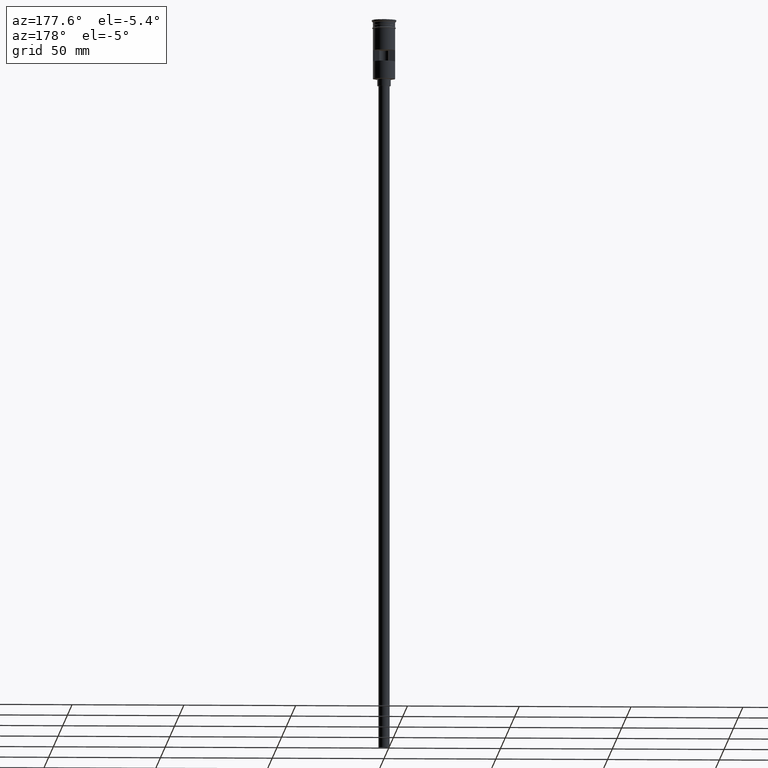
[diagram: clean part render]
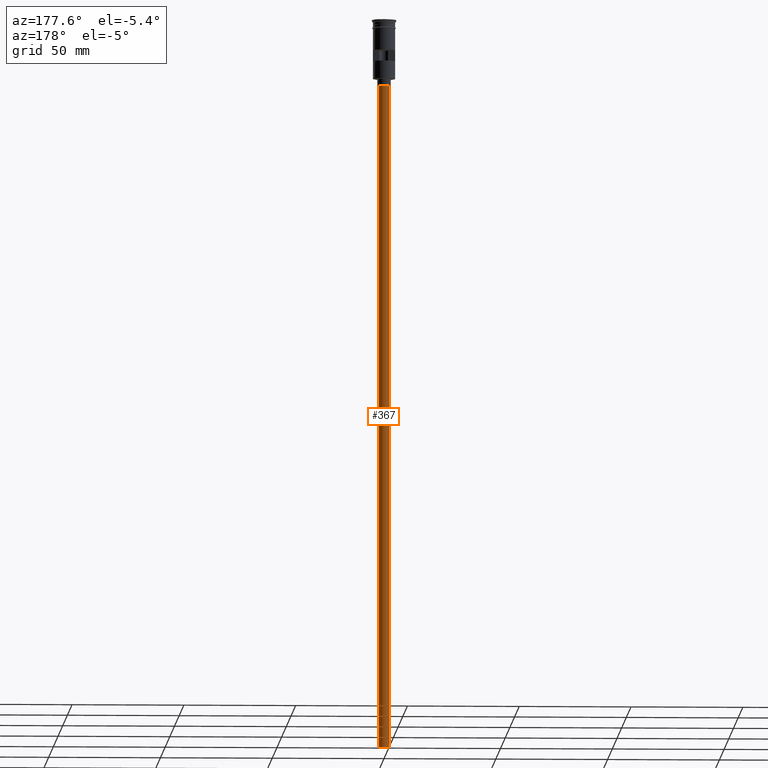
[diagram: same view with one face highlighted and labeled with its STEP entity id]
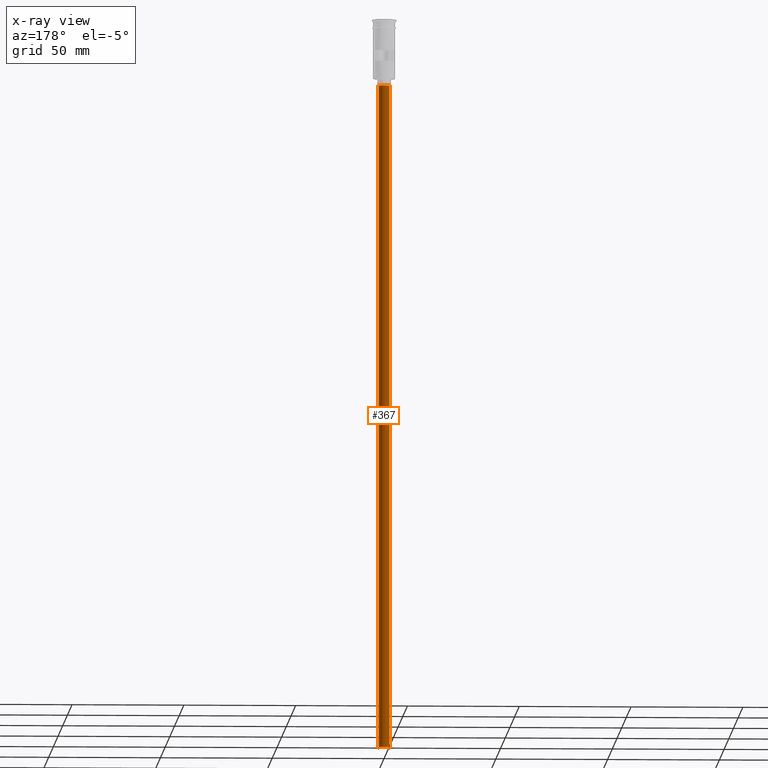
[diagram: x-ray of the same camera — body ghosted, the highlighted face saturated]
A machine part, auxiliary view. The second image highlights one B-rep face of the part: STEP entity #367.
The next image is the same camera in x-ray: the body ghosted, the highlighted face saturated — about 0% of this face is hidden behind the body in this view.
In plain terms, the highlighted cylindrical surface (edge-blend (fillet) strip) has radius 2.5 mm, axis along (-0, -0, 1).
Its self-contained STEP definition (entity closure, byte-faithful):
#41 = FACE_OUTER_BOUND ( 'NONE', #67, .T. ) ;
#49 = CIRCLE ( 'NONE', #661, 2.500000000000000000 ) ;
#67 = EDGE_LOOP ( 'NONE', ( #716, #928, #1349, #640 ) ) ;
#86 = CARTESIAN_POINT ( 'NONE',  ( -2.500000000000000000, 3.061616997868383141E-16, -29.50000000000000000 ) ) ;
#106 = EDGE_CURVE ( 'NONE', #311, #1143, #264, .T. ) ;
#118 = DIRECTION ( 'NONE',  ( -0.000000000000000000, -0.000000000000000000, 1.000000000000000000 ) ) ;
#149 = DIRECTION ( 'NONE',  ( -0.000000000000000000, -0.000000000000000000, 1.000000000000000000 ) ) ;
#228 = LINE ( 'NONE', #593, #574 ) ;
#264 = LINE ( 'NONE', #409, #1361 ) ;
#297 = CYLINDRICAL_SURFACE ( 'NONE', #895, 2.500000000000000000 ) ;
#311 = VERTEX_POINT ( 'NONE', #877 ) ;
#334 = DIRECTION ( 'NONE',  ( 0.000000000000000000, 0.000000000000000000, -1.000000000000000000 ) ) ;
#367 = ADVANCED_FACE ( 'NONE', ( #41 ), #297, .T. ) ;
#374 = CIRCLE ( 'NONE', #1296, 2.500000000000000000 ) ;
#403 = VERTEX_POINT ( 'NONE', #1084 ) ;
#409 = CARTESIAN_POINT ( 'NONE',  ( -2.500000000000000000, 3.061616997868383141E-16, -326.5000000000000000 ) ) ;
#429 = EDGE_CURVE ( 'NONE', #403, #825, #228, .T. ) ;
#547 = DIRECTION ( 'NONE',  ( -0.000000000000000000, -0.000000000000000000, 1.000000000000000000 ) ) ;
#550 = DIRECTION ( 'NONE',  ( -1.000000000000000000, 0.000000000000000000, 0.000000000000000000 ) ) ;
#574 = VECTOR ( 'NONE', #118, 1000.000000000000000 ) ;
#593 = CARTESIAN_POINT ( 'NONE',  ( 2.500000000000000000, 0.000000000000000000, -326.5000000000000000 ) ) ;
#627 = CARTESIAN_POINT ( 'NONE',  ( 0.000000000000000000, 0.000000000000000000, -29.50000000000000000 ) ) ;
#640 = ORIENTED_EDGE ( 'NONE', *, *, #429, .F. ) ;
#644 = DIRECTION ( 'NONE',  ( 0.000000000000000000, 0.000000000000000000, -1.000000000000000000 ) ) ;
#661 = AXIS2_PLACEMENT_3D ( 'NONE', #688, #334, #550 ) ;
#688 = CARTESIAN_POINT ( 'NONE',  ( 0.000000000000000000, 0.000000000000000000, -326.5000000000000000 ) ) ;
#716 = ORIENTED_EDGE ( 'NONE', *, *, #1255, .F. ) ;
#825 = VERTEX_POINT ( 'NONE', #1410 ) ;
#877 = CARTESIAN_POINT ( 'NONE',  ( -2.500000000000000000, 3.061616997868383141E-16, -326.5000000000000000 ) ) ;
#895 = AXIS2_PLACEMENT_3D ( 'NONE', #1299, #547, #1526 ) ;
#928 = ORIENTED_EDGE ( 'NONE', *, *, #106, .T. ) ;
#1084 = CARTESIAN_POINT ( 'NONE',  ( 2.500000000000000000, 0.000000000000000000, -326.5000000000000000 ) ) ;
#1143 = VERTEX_POINT ( 'NONE', #86 ) ;
#1210 = EDGE_CURVE ( 'NONE', #1143, #825, #374, .T. ) ;
#1255 = EDGE_CURVE ( 'NONE', #311, #403, #49, .T. ) ;
#1296 = AXIS2_PLACEMENT_3D ( 'NONE', #627, #644, #1533 ) ;
#1299 = CARTESIAN_POINT ( 'NONE',  ( 0.000000000000000000, 0.000000000000000000, -326.5000000000000000 ) ) ;
#1349 = ORIENTED_EDGE ( 'NONE', *, *, #1210, .T. ) ;
#1361 = VECTOR ( 'NONE', #149, 1000.000000000000000 ) ;
#1410 = CARTESIAN_POINT ( 'NONE',  ( 2.500000000000000000, 0.000000000000000000, -29.50000000000000000 ) ) ;
#1526 = DIRECTION ( 'NONE',  ( 1.000000000000000000, 0.000000000000000000, 0.000000000000000000 ) ) ;
#1533 = DIRECTION ( 'NONE',  ( -1.000000000000000000, 0.000000000000000000, 0.000000000000000000 ) ) ;